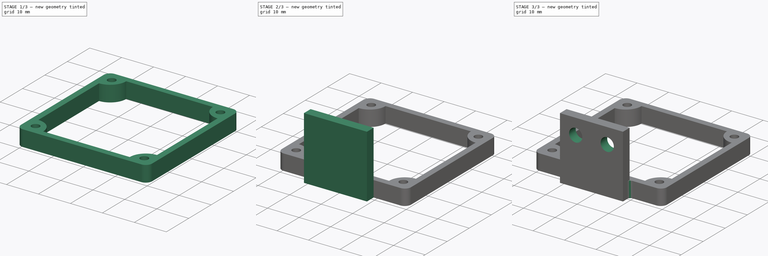
[diagram: build sequence overview — one tinted view per stage of 3, left to right]
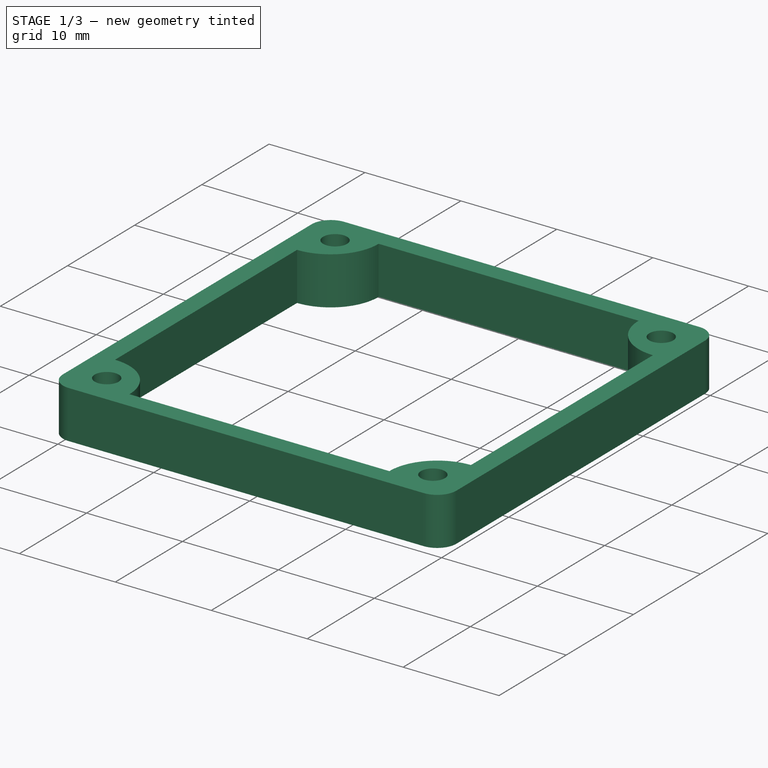
[diagram: stage 1 of 3 — iso view after this stage's code; geometry added in this stage tinted green]
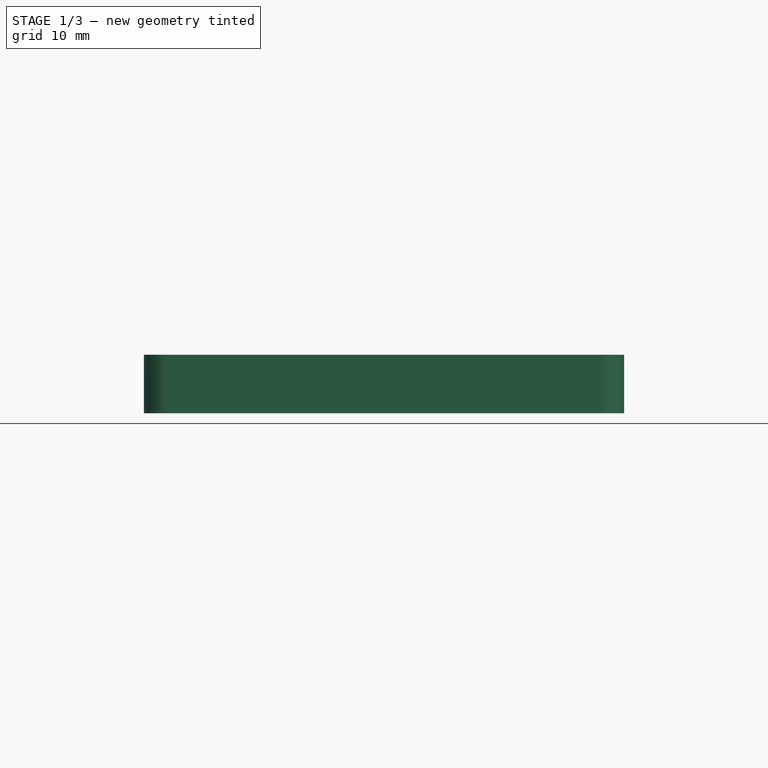
[diagram: stage 1 of 3 — front view after this stage's code; geometry added in this stage tinted green]
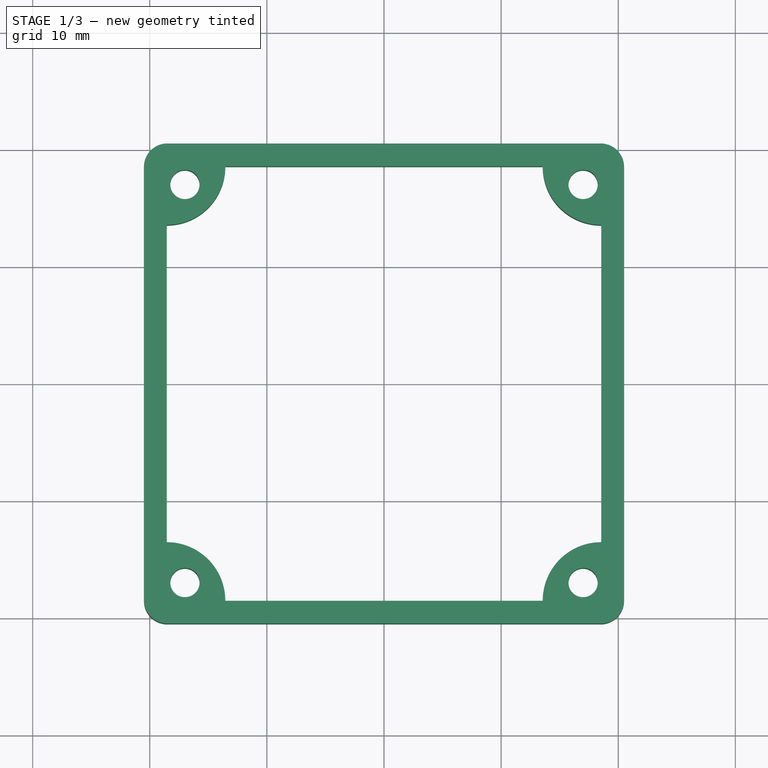
[diagram: stage 1 of 3 — top view after this stage's code; geometry added in this stage tinted green]
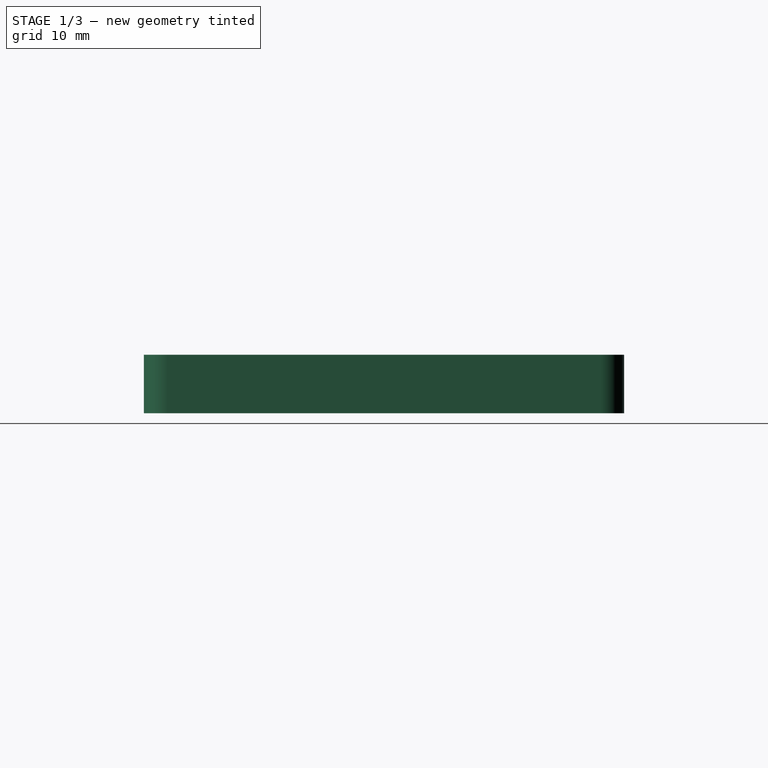
[diagram: stage 1 of 3 — right view after this stage's code; geometry added in this stage tinted green]
FCSTD DOCUMENT  (FreeCAD 2023.1102R14555 (Git shallow))
Label: Camera_Holder
License: All rights reserved
LicenseURL: https://en.wikipedia.org/wiki/All_rights_reserved
objects: Part::FeaturePython×4, Sketcher::SketchObject×3, App::FeaturePython×2, PartDesign::Pad×2, PartDesign::Fillet×2, App::Link×1, PartDesign::SubShapeBinder×1, PartDesign::Plane×1, PartDesign::Pocket×1, PartDesign::Body×1, App::Part×1
note: 27 computed .brp shape members not serialized (recipe doc carries the construction recipe); baked Part::Feature solids carry a one-line shape summary decoded from their .brp
EXTERNAL_REF file=Arducam_B0197.FCStd obj=Part

FEATURE [App::Link] Link  label="Link(Arducam_B0197)"
  AutoLinkLabel = true
  AutoPlacement = true
  LinkPlacement = pos=(0,0,0) rot=(0,1,0;3.14159rad)
  LinkedObject = -> <external Arducam_B0197.FCStd>#Part
  Placement = pos=(0,0,0) rot=(0,1,0;3.14159rad)
  SyncGroupVisibility = false
  TreeRank = 7
  _LinkVersion = 1
FEATURE [App::FeaturePython] Constraints  # WARN: FeaturePython — macro-defined, semantics opaque (R4)
  TreeRank = 3
  _LinkVersion = 1
  _Version = 1
FEATURE [PartDesign::SubShapeBinder] Binder  label="Binder(*Arducam_B0197)"
  BindCopyOnChange = 0
  BindMode = 0
  ClaimChildren = false
  Context = -> Assembly [Parts.Part.Body.Binder.]
  EdgeTolerance = 1e-06
  FillStyle = 0
  Fuse = false
  InvalidShape = false
  MakeFace = true
  MergeEdges = true
  OffsetFill = false
  OffsetIntersection = false
  OffsetJoinType = 0
  OffsetOpenResult = false
  Outline = false
  PartialLoad = false
  Relative = true
  SplitEdges = false
  Support = -> [Link]
  TightBound = false
  TreeRank = 33
  ValidateShape = false
  _Version = 8
FEATURE [PartDesign::Plane] DatumPlane
  AttachmentSupport = -> [Binder]
  InvalidShape = false
  Length = 41
  MapMode = 5
  MinimumLength = 10
  MinimumWidth = 10
  Placement = pos=(1.39876e-07,0,1.6) rot=(0,1.01411,0;0rad)
  ResizeMode = 0
  Support = -> [Binder]
  TreeRank = 34
  ValidateShape = false
  Width = 41
FEATURE [Sketcher::SketchObject] Sketch
  ArcFitTolerance = 1e-06
  AttachmentSupport = -> [DatumPlane]
  ExternalBSplineMaxDegree = 5
  ExternalBSplineTolerance = 0.0001
  ExternalGeometry = -> [Binder]
  FullyConstrained = true
  InternalTolerance = 1e-06
  InvalidShape = false
  MakeInternals = false
  MapMode = 5
  Placement = pos=(1.39876e-07,0,1.6) rot=(0,1.01411,0;0rad)
  Support = -> [DatumPlane]
  TreeRank = 35
  ValidateShape = false
  sketch-geometry (26):
    g0: Circle CenterX=-17 CenterY=17 CenterZ=0 NormalX=0 NormalY=0 NormalZ=1 AngleXU=0 Radius=1.25
    g1: Circle CenterX=17 CenterY=17 CenterZ=0 NormalX=0 NormalY=0 NormalZ=1 AngleXU=0 Radius=1.25
    g2: Circle CenterX=17 CenterY=-17 CenterZ=0 NormalX=0 NormalY=0 NormalZ=1 AngleXU=0 Radius=1.25
    g3: Circle CenterX=-17 CenterY=-17 CenterZ=0 NormalX=0 NormalY=0 NormalZ=1 AngleXU=0 Radius=1.25
    g4: LineSegment StartX=-20.5 StartY=-20.5 StartZ=0 EndX=-20.5 EndY=20.5 EndZ=0
    g5: LineSegment StartX=-20.5 StartY=20.5 StartZ=0 EndX=20.5 EndY=20.5 EndZ=0
    g6: LineSegment StartX=20.5 StartY=20.5 StartZ=0 EndX=20.5 EndY=-20.5 EndZ=0
    g7: LineSegment StartX=20.5 StartY=-20.5 StartZ=0 EndX=-20.5 EndY=-20.5 EndZ=0
    g8: GeomPoint [constr] X=0 Y=1e-16 Z=0
    g9: GeomPoint [constr] X=0 Y=1e-16 Z=0
    g10: ArcOfCircle CenterX=-18.55 CenterY=18.55 CenterZ=0 NormalX=0 NormalY=0 NormalZ=1 AngleXU=0 Radius=5 StartAngle=4.71239 EndAngle=6.28319
    g11: LineSegment [constr] StartX=-18.55 StartY=13.55 StartZ=0 EndX=-18.55 EndY=18.55 EndZ=0
    g12: LineSegment [constr] StartX=-18.55 StartY=18.55 StartZ=0 EndX=-13.55 EndY=18.55 EndZ=0
    g13: LineSegment StartX=-13.55 StartY=18.55 StartZ=0 EndX=13.55 EndY=18.55 EndZ=0
    g14: LineSegment [constr] StartX=13.55 StartY=18.55 StartZ=0 EndX=18.55 EndY=18.55 EndZ=0
    g15: LineSegment [constr] StartX=18.55 StartY=18.55 StartZ=0 EndX=18.55 EndY=13.55 EndZ=0
    g16: LineSegment StartX=18.55 StartY=13.55 StartZ=0 EndX=18.55 EndY=-13.55 EndZ=0
    g17: LineSegment [constr] StartX=18.55 StartY=-13.55 StartZ=0 EndX=18.55 EndY=-18.55 EndZ=0
    g18: LineSegment [constr] StartX=18.55 StartY=-18.55 StartZ=0 EndX=13.55 EndY=-18.55 EndZ=0
    g19: LineSegment StartX=13.55 StartY=-18.55 StartZ=0 EndX=-13.55 EndY=-18.55 EndZ=0
    g20: LineSegment [constr] StartX=-13.55 StartY=-18.55 StartZ=0 EndX=-18.55 EndY=-18.55 EndZ=0
    g21: LineSegment [constr] StartX=-18.55 StartY=-18.55 StartZ=0 EndX=-18.55 EndY=-13.55 EndZ=0
    g22: LineSegment StartX=-18.55 StartY=-13.55 StartZ=0 EndX=-18.55 EndY=13.55 EndZ=0
    g23: ArcOfCircle CenterX=18.55 CenterY=18.55 CenterZ=0 NormalX=0 NormalY=0 NormalZ=1 AngleXU=0 Radius=5 StartAngle=3.14159 EndAngle=4.71239
    g24: ArcOfCircle CenterX=18.55 CenterY=-18.55 CenterZ=0 NormalX=0 NormalY=0 NormalZ=1 AngleXU=0 Radius=5 StartAngle=1.5708 EndAngle=3.14159
    g25: ArcOfCircle CenterX=-18.55 CenterY=-18.55 CenterZ=0 NormalX=0 NormalY=0 NormalZ=1 AngleXU=0 Radius=5 StartAngle=0 EndAngle=1.5708
  constraints (64):
    c: Coincident(g0,g-3)
    c: Coincident(g1,g-4)
    c: Coincident(g2,g-5)
    c: Coincident(g3,g-6)
    c: Equal(g3,g0)
    c: Equal(g0,g1)
    c: Equal(g1,g2)
    c: Diameter(g0) = 2.5
    c: Coincident(g4,g5)
    c: Coincident(g5,g6)
    c: Coincident(g6,g7)
    c: Coincident(g7,g4)
    c: Horizontal(g5)
    c: Horizontal(g7)
    c: Vertical(g4)
    c: Vertical(g6)
    c: Symmetric(g5,g4,g8)
    c: Coincident(g8,g-1)
    c: Distance(g5) = 41
    c: Equal(g5,g4)
    c: Coincident(g11,g12)
    c: Coincident(g14,g15)
    c: Coincident(g17,g18)
    c: Coincident(g20,g21)
    c: Symmetric(g14,g21,g9)
    c: Coincident(g9,g8)
    c: Coincident(g10,g11)
    c: Radius(g10) = 5
    c: Coincident(g22,g11)
    c: Vertical(g11)
    c: Coincident(g22,g10)
    c: Coincident(g12,g13)
    c: Horizontal(g12)
    c: Coincident(g12,g10)
    c: DistanceY(g10,g-7) = 0.5
    c: DistanceX(g-7,g10) = 0.5
    c: Coincident(g13,g14)
    c: Horizontal(g13)
    c: Horizontal(g14)
    c: Coincident(g15,g16)
    c: Vertical(g15)
    c: Coincident(g16,g17)
    c: Vertical(g16)
    c: Vertical(g17)
    c: Coincident(g18,g19)
    c: Horizontal(g18)
    c: Coincident(g19,g20)
    c: Horizontal(g19)
    c: Horizontal(g20)
    c: Coincident(g21,g22)
    c: Vertical(g21)
    c: Vertical(g22)
    c: Coincident(g23,g13)
    c: Coincident(g23,g16)
    c: Coincident(g23,g14)
    c: Coincident(g24,g19)
    c: Coincident(g24,g16)
    c: Coincident(g24,g17)
    c: Coincident(g25,g22)
    c: Coincident(g25,g19)
    c: Coincident(g25,g20)
    c: Equal(g24,g25)
    c: Equal(g25,g23)
    c: Equal(g23,g10)
FEATURE [PartDesign::Pad] Pad
  AddSubType = 0
  AlongSketchNormal = false
  AutoTaperInnerAngle = true
  CheckUpToFaceLimits = true
  ClaimChildren = false
  Direction = (8.74228e-08,0,1)
  Fit = 0
  FitJoin = 0
  InnerFit = 0
  InnerFitJoin = 0
  InvalidShape = false
  Length = 5
  Length2 = 10
  Linearize = true
  NewSolid = false
  Profile = -> Sketch
  ReferenceAxis = -> Sketch [N_Axis]
  Refine = true
  Suppress = false
  TaperInnerAngle = 0
  TaperInnerAngleRev = 0
  TreeRank = 36
  Type = 0
  ValidateShape = true
  _ProfileBasedVersion = 1
FEATURE [PartDesign::Fillet] Fillet
  AddSubType = 0
  Base = -> Pad [Edge1,Edge8,Edge5,Edge2]
  BaseFeature = -> Pad
  InvalidShape = false
  NewSolid = false
  Radius = 2
  Refine = true
  SupportTransform = false
  Suppress = false
  TreeRank = 37
  UseAllEdges = false
  ValidateShape = true
FEATURE [PartDesign::Body] Body
  AutoGroupSolids = false
  ClaimAllChildren = false
  ExportMode = 0
  Group = -> [Binder,DatumPlane,Sketch,Pad,Fillet,Sketch001,Pad001,Sketch002,Pocket,Fillet001]
  InvalidShape = false
  Origin = -> Origin001
  Tip = -> Fillet001
  TreeRank = 32
  ValidateShape = false
  _ExportChildren = -> [Binder,DatumPlane,Pad,Fillet,Pad001,Pocket,Fillet001]
  _GroupVersion = 1
FEATURE [App::Part] Part
  ClaimAllChildren = false
  ExportMode = 1
  Group = -> [Body]
  Origin = -> Origin
  TreeRank = 20
  _ExportChildren = -> [Body]
  _GroupVersion = 1
FEATURE [Part::FeaturePython] Parts  # WARN: FeaturePython — macro-defined, semantics opaque (R4)
  Group = -> [Part,Link]
  GroupMode = 0
  InvalidShape = false
  TreeRank = 15
  ValidateShape = false
  _LinkVersion = 1
FEATURE [Part::FeaturePython] Assembly  label="Camera_Holder_Assembly"  # WARN: FeaturePython — macro-defined, semantics opaque (R4)
  AutoRelax = true
  BuildShape = 0
  Freeze = false
  Group = -> [Constraints,Elements,Parts]
  InvalidShape = false
  TreeRank = 6
  ValidateShape = false
  Verbose = false
  _LinkVersion = 1
  _SolverType = 1
  _Version = 1
FEATURE [App::FeaturePython] Elements  # WARN: FeaturePython — macro-defined, semantics opaque (R4)
  Group = -> [Element,Element001]
  TreeRank = 4
  _LinkVersion = 1
FEATURE [Part::FeaturePython] Element  label="MountingHole01"  # link proxy (typed FeaturePython)
  Detach = false
  InvalidShape = false
  LinkTransform = true
  LinkedObject = -> Part [Body.Fillet001.Edge43]
  TreeRank = 43
  ValidateShape = false
  _LinkVersion = 1
  _Parent = -> Elements
FEATURE [Part::FeaturePython] Element001  label="MountingHole02"  # link proxy (typed FeaturePython)
  Detach = false
  InvalidShape = false
  LinkTransform = true
  LinkedObject = -> Part [Body.Fillet001.Edge42]
  TreeRank = 44
  ValidateShape = false
  _LinkVersion = 1
  _Parent = -> Elements

RESOLVED EXTERNAL PARTS (link-assembly join: the EXTERNAL_REF files above that resolve inside this repo's crawl, each included once):
---- part Arducam_B0197.FCStd = doc fcstd_32bad3ef791b ----
FCSTD DOCUMENT  (FreeCAD 2023.1102R14555 (Git shallow))
Label: Arducam_B0197
License: All rights reserved
LicenseURL: http://en.wikipedia.org/wiki/All_rights_reserved
objects: Sketcher::SketchObject×4, PartDesign::Pad×4, PartDesign::Plane×2, PartDesign::Body×1, App::Part×1
note: 23 computed .brp shape members not serialized (recipe doc carries the construction recipe); baked Part::Feature solids carry a one-line shape summary decoded from their .brp

FEATURE [Sketcher::SketchObject] Sketch
  ArcFitTolerance = 0
  AttachmentSupport = -> [XY_Plane]
  ExternalBSplineMaxDegree = 0
  ExternalBSplineTolerance = 0
  FullyConstrained = true
  InternalTolerance = 1e-06
  InvalidShape = false
  MakeInternals = false
  MapMode = 5
  Support = -> [XY_Plane]
  TreeRank = 0
  ValidateShape = false
  sketch-geometry (24):
    g0: LineSegment StartX=-19.05 StartY=19.05 StartZ=0 EndX=19.05 EndY=19.05 EndZ=0
    g1: LineSegment StartX=19.05 StartY=19.05 StartZ=0 EndX=19.05 EndY=-19.05 EndZ=0
    g2: LineSegment StartX=19.05 StartY=-19.05 StartZ=0 EndX=-19.05 EndY=-19.05 EndZ=0
    g3: LineSegment StartX=-19.05 StartY=-19.05 StartZ=0 EndX=-19.05 EndY=19.05 EndZ=0
    g4: LineSegment [constr] StartX=-14 StartY=14 StartZ=0 EndX=14 EndY=14 EndZ=0
    g5: LineSegment [constr] StartX=14 StartY=14 StartZ=0 EndX=14 EndY=-14 EndZ=0
    g6: LineSegment [constr] StartX=14 StartY=-14 StartZ=0 EndX=-14 EndY=-14 EndZ=0
    g7: LineSegment [constr] StartX=-14 StartY=-14 StartZ=0 EndX=-14 EndY=14 EndZ=0
    g8: Circle CenterX=-14 CenterY=14 CenterZ=0 NormalX=0 NormalY=0 NormalZ=1 AngleXU=0 Radius=1.125
    g9: Circle CenterX=14 CenterY=14 CenterZ=0 NormalX=0 NormalY=0 NormalZ=1 AngleXU=0 Radius=1.125
    g10: Circle CenterX=14 CenterY=-14 CenterZ=0 NormalX=0 NormalY=0 NormalZ=1 AngleXU=0 Radius=1.125
    g11: Circle CenterX=-14 CenterY=-14 CenterZ=0 NormalX=0 NormalY=0 NormalZ=1 AngleXU=0 Radius=1.125
    g12: LineSegment [constr] StartX=-17 StartY=17 StartZ=0 EndX=17 EndY=17 EndZ=0
    g13: LineSegment [constr] StartX=17 StartY=17 StartZ=0 EndX=17 EndY=-17 EndZ=0
    g14: LineSegment [constr] StartX=17 StartY=-17 StartZ=0 EndX=-17 EndY=-17 EndZ=0
    g15: LineSegment [constr] StartX=-17 StartY=-17 StartZ=0 EndX=-17 EndY=17 EndZ=0
    g16: Circle CenterX=-17 CenterY=17 CenterZ=0 NormalX=0 NormalY=0 NormalZ=1 AngleXU=0 Radius=1.125
    g17: Circle CenterX=17 CenterY=17 CenterZ=0 NormalX=0 NormalY=0 NormalZ=1 AngleXU=0 Radius=1.125
    g18: Circle CenterX=17 CenterY=-17 CenterZ=0 NormalX=0 NormalY=0 NormalZ=1 AngleXU=0 Radius=1.125
    g19: Circle CenterX=-17 CenterY=-17 CenterZ=0 NormalX=0 NormalY=0 NormalZ=1 AngleXU=0 Radius=1.125
    g20: LineSegment [constr] StartX=-16 StartY=16 StartZ=0 EndX=16 EndY=16 EndZ=0
    g21: LineSegment [constr] StartX=16 StartY=16 StartZ=0 EndX=16 EndY=-16 EndZ=0
    g22: LineSegment [constr] StartX=16 StartY=-16 StartZ=0 EndX=-16 EndY=-16 EndZ=0
    g23: LineSegment [constr] StartX=-16 StartY=-16 StartZ=0 EndX=-16 EndY=16 EndZ=0
  constraints (58):
    c: Coincident(g0,g1)
    c: Coincident(g1,g2)
    c: Coincident(g2,g3)
    c: Coincident(g3,g0)
    c: Horizontal(g2)
    c: Vertical(g1)
    c: DistanceX(g0,g0) = 38.1
    c: DistanceY(g3,g3) = 38.1
    c: Symmetric(g0,g0,g-2)
    c: Symmetric(g2,g0,g-1)
    c: Coincident(g4,g5)
    c: Coincident(g5,g6)
    c: Coincident(g6,g7)
    c: Coincident(g7,g4)
    c: Horizontal(g4)
    c: Vertical(g7)
    c: DistanceX(g4,g4) = 28
    c: Coincident(g8,g4)
    c: Diameter(g8) = 2.25
    c: DistanceY(g5,g5) = 28
    c: Symmetric(g4,g5,g-1)
    c: Symmetric(g5,g6,g-2)
    c: Coincident(g9,g4)
    c: Coincident(g10,g5)
    c: Coincident(g11,g6)
    c: Equal(g9,g10)
    c: Equal(g10,g11)
    c: Equal(g11,g8)
    c: Coincident(g12,g13)
    c: Coincident(g13,g14)
    c: Coincident(g14,g15)
    c: Coincident(g15,g12)
    c: Horizontal(g12)
    c: Horizontal(g14)
    c: Vertical(g13)
    c: Vertical(g15)
    c: DistanceX(g12,g12) = 34
    c: Equal(g13,g12)
    c: Symmetric(g14,g12,g-1)
    c: Coincident(g16,g12)
    c: Coincident(g17,g12)
    c: Coincident(g18,g13)
    c: Coincident(g19,g14)
    c: Equal(g16,g19)
    c: Equal(g19,g18)
    c: Equal(g18,g17)
    c: Diameter(g18) = 2.25
    c: Coincident(g20,g21)
    c: Coincident(g21,g22)
    c: Coincident(g22,g23)
    c: Coincident(g23,g20)
    c: Horizontal(g20)
    c: Horizontal(g22)
    c: Vertical(g21)
    c: Vertical(g23)
    c: Symmetric(g20,g21,g-1)
    c: Equal(g21,g20)
    c: DistanceY(g21,g21) = 32
FEATURE [PartDesign::Pad] Pad
  AddSubType = 0
  AutoTaperInnerAngle = true
  CheckUpToFaceLimits = true
  ClaimChildren = false
  Direction = (0,0,1)
  Fit = 0
  FitJoin = 0
  InnerFit = 0
  InnerFitJoin = 0
  InvalidShape = false
  Length = 1.6
  Length2 = 100
  NewSolid = false
  Profile = -> Sketch
  Reversed = true
  Suppress = false
  TaperInnerAngle = 0
  TaperInnerAngleRev = 0
  TreeRank = 0
  Type = 0
  ValidateShape = true
  _ProfileBasedVersion = 0
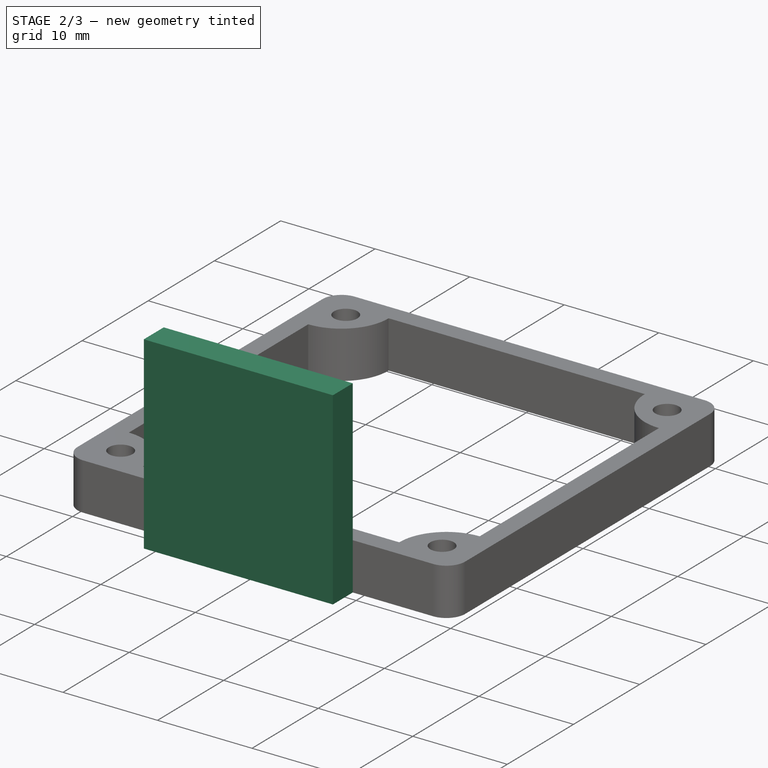
[diagram: stage 2 of 3 — iso view after this stage's code; geometry added in this stage tinted green]
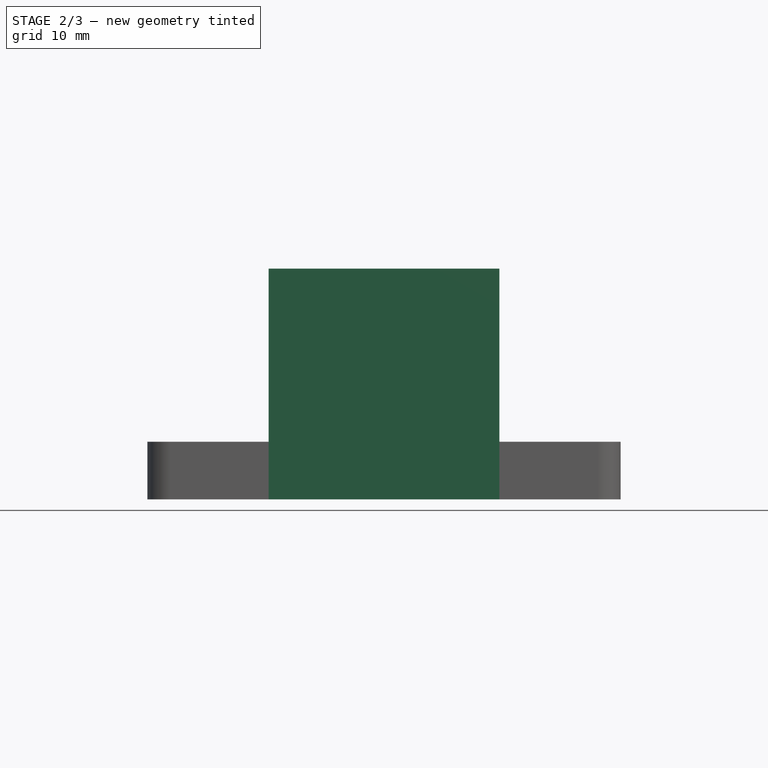
[diagram: stage 2 of 3 — front view after this stage's code; geometry added in this stage tinted green]
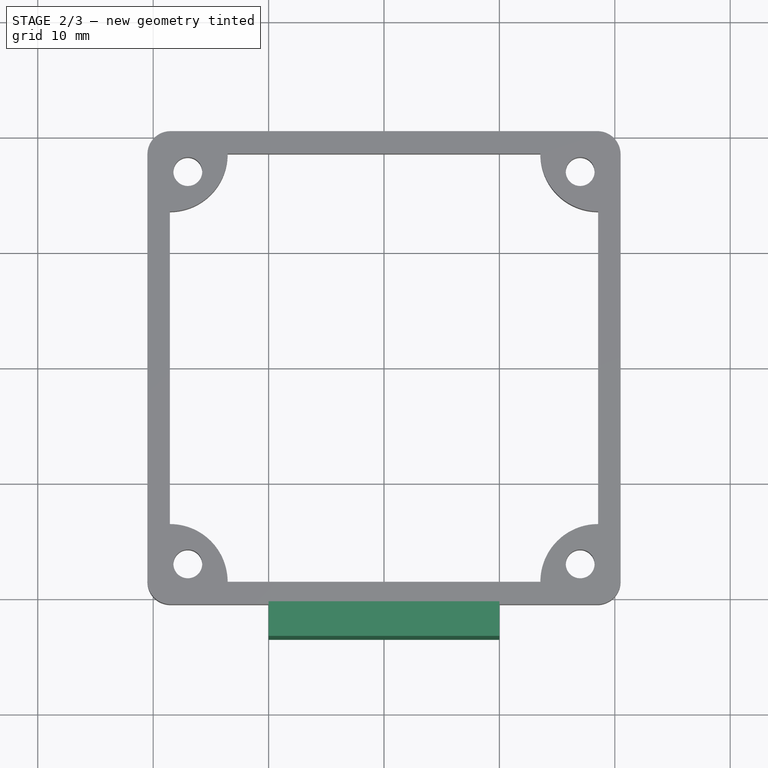
[diagram: stage 2 of 3 — top view after this stage's code; geometry added in this stage tinted green]
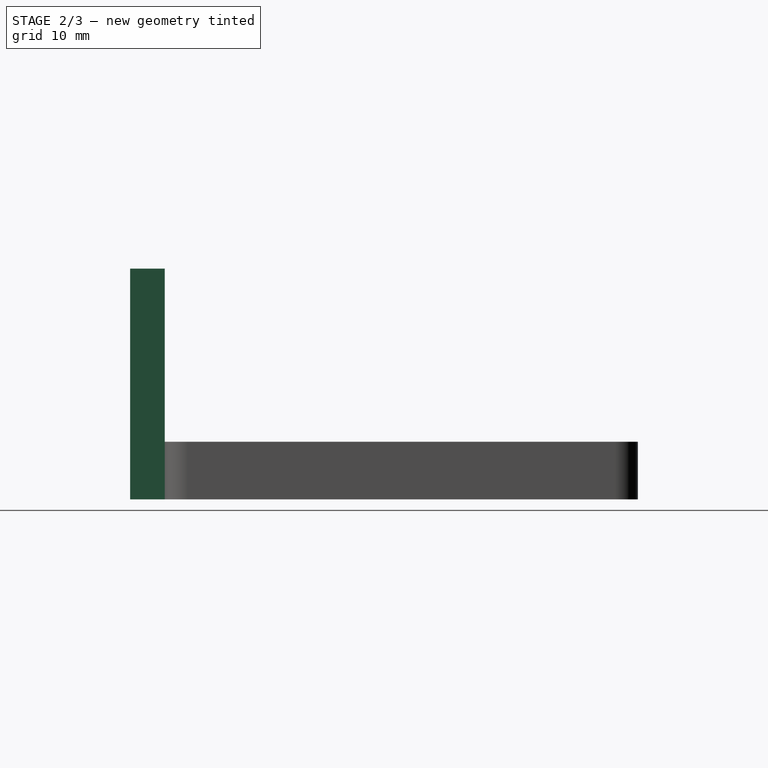
[diagram: stage 2 of 3 — right view after this stage's code; geometry added in this stage tinted green]
FEATURE [Sketcher::SketchObject] Sketch001
  ArcFitTolerance = 0
  AttachmentSupport = -> [XY_Plane]
  ExternalBSplineMaxDegree = 0
  ExternalBSplineTolerance = 0
  FullyConstrained = true
  InternalTolerance = 1e-06
  InvalidShape = false
  MakeInternals = false
  MapMode = 5
  Support = -> [XY_Plane]
  TreeRank = 0
  ValidateShape = false
  sketch-geometry (12):
    g0: LineSegment StartX=-8 StartY=2.25 StartZ=0 EndX=-8 EndY=8 EndZ=0
    g1: LineSegment StartX=-8 StartY=8 StartZ=0 EndX=8 EndY=8 EndZ=0
    g2: LineSegment StartX=8 StartY=8 StartZ=0 EndX=8 EndY=2.25 EndZ=0
    g3: LineSegment StartX=-8 StartY=-2.25 StartZ=0 EndX=-8 EndY=-8 EndZ=0
    g4: LineSegment StartX=-8 StartY=-8 StartZ=0 EndX=8 EndY=-8 EndZ=0
    g5: LineSegment StartX=8 StartY=-8 StartZ=0 EndX=8 EndY=-2.25 EndZ=0
    g6: ArcOfCircle CenterX=-10 CenterY=0 CenterZ=0 NormalX=0 NormalY=0 NormalZ=1 AngleXU=0 Radius=2.25 StartAngle=1.5708 EndAngle=4.71239
    g7: ArcOfCircle CenterX=10 CenterY=0 CenterZ=0 NormalX=0 NormalY=0 NormalZ=1 AngleXU=0 Radius=2.25 StartAngle=4.71239 EndAngle=7.85398
    g8: LineSegment StartX=-10 StartY=2.25 StartZ=0 EndX=-8 EndY=2.25 EndZ=0
    g9: LineSegment StartX=-9.99999 StartY=-2.25 StartZ=0 EndX=-8 EndY=-2.25 EndZ=0
    g10: LineSegment StartX=8 StartY=2.25 StartZ=0 EndX=10 EndY=2.25 EndZ=0
    g11: LineSegment StartX=8 StartY=-2.25 StartZ=0 EndX=10 EndY=-2.25 EndZ=0
  constraints (34):
    c: Vertical(g0)
    c: Coincident(g0,g1)
    c: Coincident(g1,g2)
    c: Vertical(g2)
    c: Vertical(g3)
    c: Coincident(g3,g4)
    c: Horizontal(g4)
    c: Coincident(g4,g5)
    c: Vertical(g5)
    c: PointOnObject(g6,g-1)
    c: Tangent(g6,g8) = 1.5708
    c: Coincident(g2,g10)
    c: Coincident(g10,g7)
    c: Coincident(g5,g11)
    c: Coincident(g11,g7)
    c: Coincident(g8,g0)
    c: Horizontal(g8)
    c: Horizontal(g9)
    c: Coincident(g9,g3)
    c: Coincident(g9,g6)
    c: Horizontal(g10)
    c: Horizontal(g11)
    c: Tangent(g7,g10)
    c: Tangent(g7,g11)
    c: Tangent(g6,g9)
    c: DistanceX(g1,g1) = 16
    c: DistanceY(g3,g0) = 16
    c: PointOnObject(g0,g3)
    c: Symmetric(g0,g1,g-2)
    c: Symmetric(g1,g4,g-1)
    c: DistanceY(g5,g2) = 4.5
    c: DistanceY(g3,g0) = 4.5
    c: DistanceX(g6,g7) = 20
    c: Symmetric(g7,g6,g-2)
FEATURE [PartDesign::Pad] Pad001
  AddSubType = 0
  AlongSketchNormal = false
  AutoTaperInnerAngle = true
  BaseFeature = -> Pad
  CheckUpToFaceLimits = true
  ClaimChildren = false
  Direction = (0,0,1)
  Fit = 0
  FitJoin = 0
  InnerFit = 0
  InnerFitJoin = 0
  InvalidShape = false
  Length = 6.1
  Length2 = 100
  NewSolid = false
  Profile = -> Sketch001
  Suppress = false
  TaperInnerAngle = 0
  TaperInnerAngleRev = 0
  TreeRank = 0
  Type = 0
  ValidateShape = true
  _ProfileBasedVersion = 0
FEATURE [PartDesign::Plane] DatumPlane
  AttachmentSupport = -> [Pad001]
  InvalidShape = false
  Length = 10
  MapMode = 5
  MinimumLength = 10
  MinimumWidth = 10
  Placement = pos=(0,0,6.1) rot=(0,0,1;0rad)
  ResizeMode = 0
  Support = -> [Pad001]
  TreeRank = 0
  ValidateShape = false
  Width = 10
FEATURE [Sketcher::SketchObject] Sketch002
  ArcFitTolerance = 0
  AttachmentSupport = -> [DatumPlane]
  ExternalBSplineMaxDegree = 0
  ExternalBSplineTolerance = 0
  FullyConstrained = true
  InternalTolerance = 1e-06
  InvalidShape = false
  MakeInternals = false
  MapMode = 5
  Placement = pos=(0,0,6.1) rot=(0,0,1;0rad)
  Support = -> [DatumPlane]
  TreeRank = 0
  ValidateShape = false
  sketch-geometry (1):
    g0: Circle CenterX=0 CenterY=0 CenterZ=0 NormalX=0 NormalY=0 NormalZ=1 AngleXU=0 Radius=7.5
  constraints (2):
    c: Coincident(g0,g-1)
    c: Diameter(g0) = 15
FEATURE [PartDesign::Pad] Pad002
  AddSubType = 0
  AlongSketchNormal = false
  AutoTaperInnerAngle = true
  BaseFeature = -> Pad001
  CheckUpToFaceLimits = true
  ClaimChildren = false
  Direction = (0,0,1)
  Fit = 0
  FitJoin = 0
  InnerFit = 0
  InnerFitJoin = 0
  InvalidShape = false
  Length = 1
  Length2 = 100
  NewSolid = false
  Profile = -> Sketch002
  Suppress = false
  TaperInnerAngle = 0
  TaperInnerAngleRev = 0
  TreeRank = 0
  Type = 0
  ValidateShape = true
  _ProfileBasedVersion = 0
FEATURE [PartDesign::Plane] DatumPlane001
  AttachmentSupport = -> [Pad002]
  InvalidShape = false
  Length = 38.1
  MapMode = 5
  MinimumLength = 10
  MinimumWidth = 10
  Placement = pos=(0,0,-1.6) rot=(1,0,0;3.14159rad)
  ResizeMode = 0
  Support = -> [Pad002]
  TreeRank = 0
  ValidateShape = false
  Width = 38.1
FEATURE [Sketcher::SketchObject] Sketch003
  ArcFitTolerance = 0
  AttachmentSupport = -> [DatumPlane001]
  ExternalBSplineMaxDegree = 0
  ExternalBSplineTolerance = 0
  FullyConstrained = true
  InternalTolerance = 1e-06
  InvalidShape = false
  MakeInternals = false
  MapMode = 5
  Placement = pos=(0,0,-1.6) rot=(1,0,0;3.14159rad)
  Support = -> [DatumPlane001]
  TreeRank = 0
  ValidateShape = false
  sketch-geometry (4):
    g0: LineSegment StartX=0 StartY=15.5 StartZ=0 EndX=10 EndY=15.5 EndZ=0
    g1: LineSegment StartX=10 StartY=15.5 StartZ=0 EndX=10 EndY=11 EndZ=0
    g2: LineSegment StartX=10 StartY=11 StartZ=0 EndX=0 EndY=11 EndZ=0
    g3: LineSegment StartX=0 StartY=11 StartZ=0 EndX=0 EndY=15.5 EndZ=0
  constraints (12):
    c: Coincident(g0,g1)
    c: Coincident(g1,g2)
    c: Coincident(g2,g3)
    c: Coincident(g3,g0)
    c: Horizontal(g0)
    c: Horizontal(g2)
    c: Vertical(g1)
    c: Vertical(g3)
    c: DistanceX(g0,g0) = 10
    c: DistanceY(g1,g1) = 4.5
    c: PointOnObject(g-1,g3)
    c: DistanceY(g-1,g2) = 11
FEATURE [PartDesign::Pad] Pad003
  AddSubType = 0
  AutoTaperInnerAngle = true
  BaseFeature = -> Pad002
  CheckUpToFaceLimits = true
  ClaimChildren = false
  Direction = (0,0,-1)
  Fit = 0
  FitJoin = 0
  InnerFit = 0
  InnerFitJoin = 0
  InvalidShape = false
  Length = 6.25
  Length2 = 100
  NewSolid = false
  Profile = -> Sketch003
  Suppress = false
  TaperInnerAngle = 0
  TaperInnerAngleRev = 0
  TreeRank = 0
  Type = 0
  ValidateShape = true
  _ProfileBasedVersion = 0
FEATURE [PartDesign::Body] Body
  AutoGroupSolids = false
  ClaimAllChildren = false
  ExportMode = 0
  Group = -> [Sketch,Pad,Sketch001,Pad001,DatumPlane,Sketch002,Pad002,DatumPlane001,Sketch003,Pad003]
  InvalidShape = false
  Origin = -> Origin
  Tip = -> Pad003
  TreeRank = 0
  ValidateShape = false
  _ExportChildren = -> [Pad,Pad001,DatumPlane,Pad002,DatumPlane001,Pad003]
  _GroupVersion = 1
FEATURE [App::Part] Part  label="Arducam_B0197"
  ClaimAllChildren = false
  ExportMode = 1
  Group = -> [Body]
  Origin = -> Origin001
  TreeRank = 5
  _ExportChildren = -> [Body]
  _GroupVersion = 1
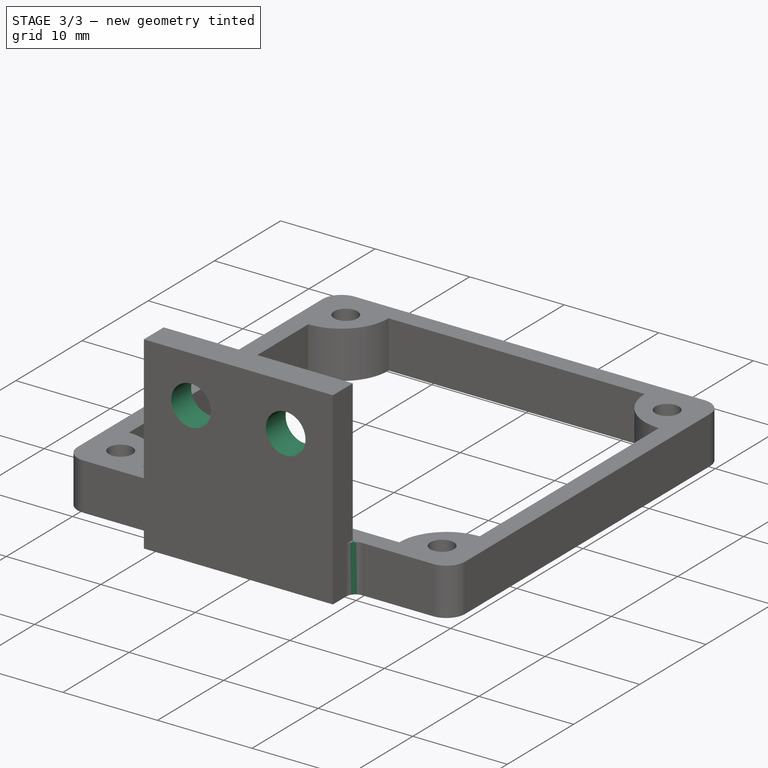
[diagram: stage 3 of 3 — iso view after this stage's code; geometry added in this stage tinted green]
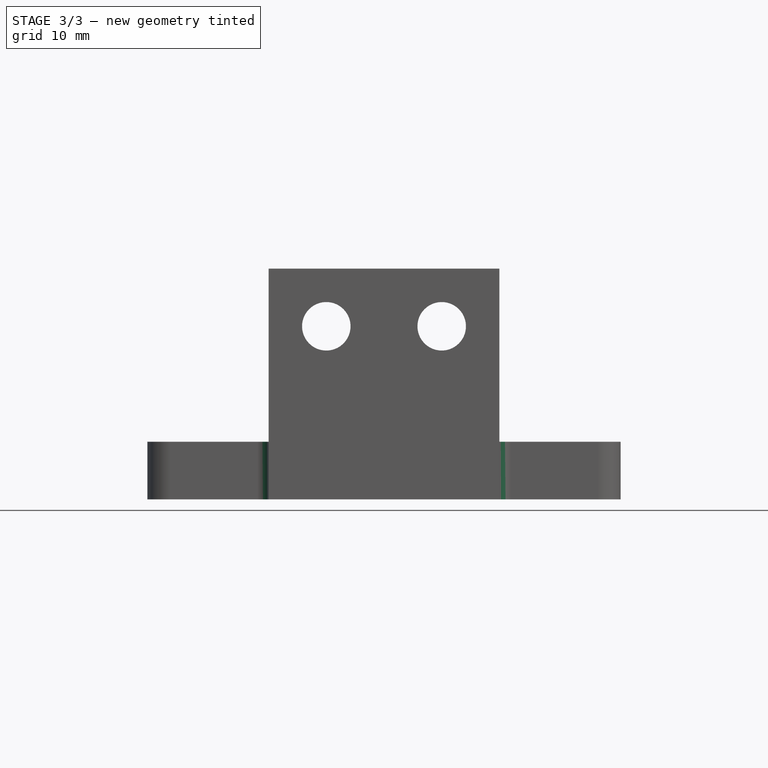
[diagram: stage 3 of 3 — front view after this stage's code; geometry added in this stage tinted green]
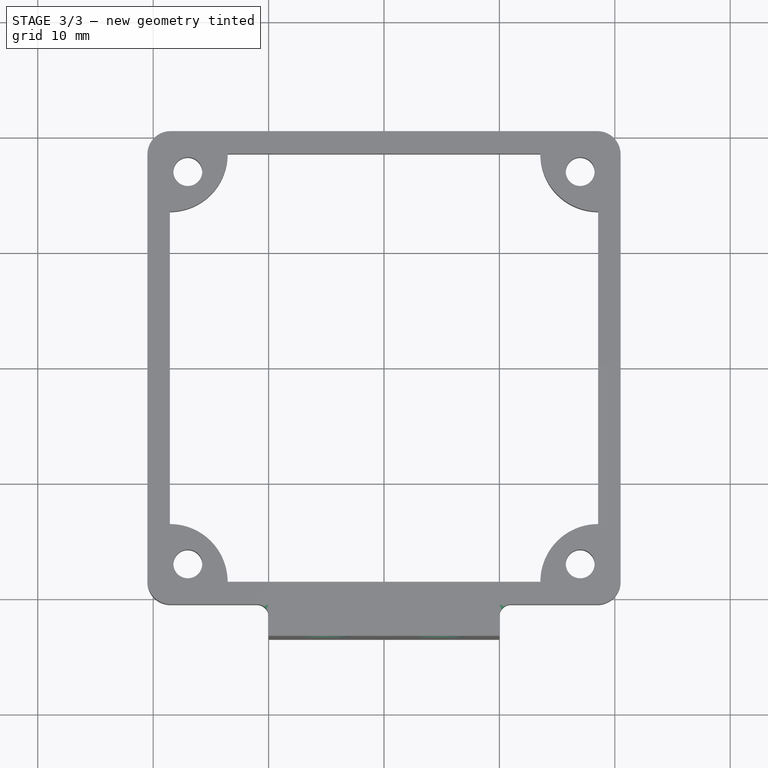
[diagram: stage 3 of 3 — top view after this stage's code; geometry added in this stage tinted green]
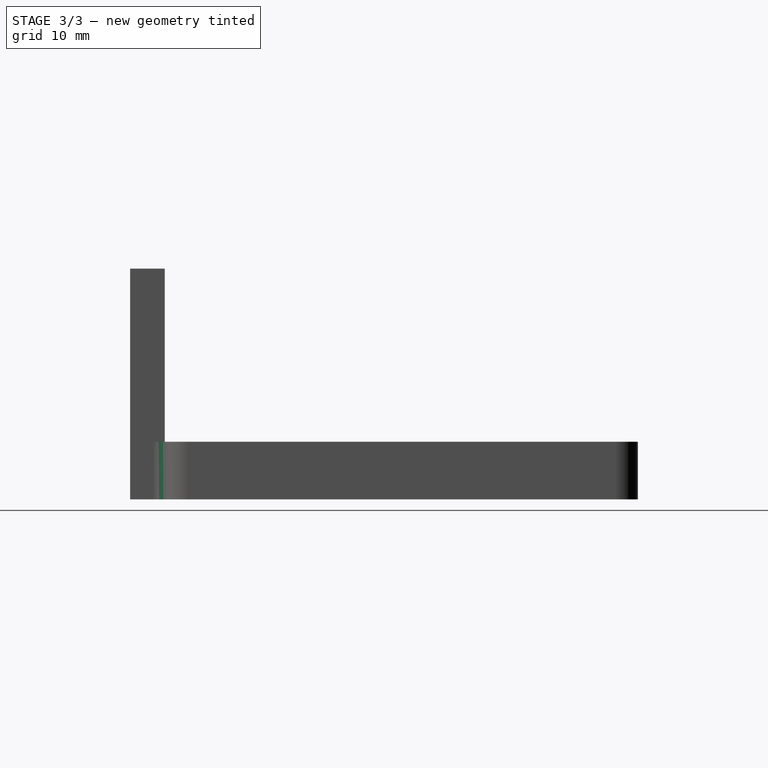
[diagram: stage 3 of 3 — right view after this stage's code; geometry added in this stage tinted green]
FEATURE [Sketcher::SketchObject] Sketch001
  ArcFitTolerance = 1e-06
  AttachmentSupport = -> [DatumPlane]
  ExternalBSplineMaxDegree = 5
  ExternalBSplineTolerance = 0.0001
  ExternalGeometry = -> [Fillet]
  FullyConstrained = true
  InternalTolerance = 1e-06
  InvalidShape = false
  MakeInternals = false
  MapMode = 5
  Placement = pos=(1.39876e-07,0,1.6) rot=(0,1.01411,0;0rad)
  Support = -> [DatumPlane]
  TreeRank = 38
  ValidateShape = false
  sketch-geometry (4):
    g0: LineSegment StartX=-10 StartY=-20.5 StartZ=0 EndX=10 EndY=-20.5 EndZ=0
    g1: LineSegment StartX=10 StartY=-20.5 StartZ=0 EndX=10 EndY=-23.5 EndZ=0
    g2: LineSegment StartX=10 StartY=-23.5 StartZ=0 EndX=-10 EndY=-23.5 EndZ=0
    g3: LineSegment StartX=-10 StartY=-23.5 StartZ=0 EndX=-10 EndY=-20.5 EndZ=0
  constraints (11):
    c: Coincident(g0,g1)
    c: Coincident(g1,g2)
    c: Coincident(g2,g3)
    c: Coincident(g3,g0)
    c: Horizontal(g2)
    c: Vertical(g1)
    c: Vertical(g3)
    c: PointOnObject(g0,g-3)
    c: Symmetric(g0,g0,g-2)
    c: Distance(g2) = 20
    c: Distance(g3) = 3
FEATURE [PartDesign::Pad] Pad001
  AddSubType = 0
  AlongSketchNormal = false
  AutoTaperInnerAngle = true
  BaseFeature = -> Fillet
  CheckUpToFaceLimits = true
  ClaimChildren = false
  Direction = (8.74228e-08,0,1)
  Fit = 0
  FitJoin = 0
  InnerFit = 0
  InnerFitJoin = 0
  InvalidShape = false
  Length = 20
  Length2 = 10
  Linearize = true
  NewSolid = false
  Profile = -> Sketch001
  ReferenceAxis = -> Sketch001 [N_Axis]
  Refine = true
  Suppress = false
  TaperInnerAngle = 0
  TaperInnerAngleRev = 0
  TreeRank = 39
  Type = 0
  ValidateShape = true
  _ProfileBasedVersion = 1
FEATURE [Sketcher::SketchObject] Sketch002
  ArcFitTolerance = 1e-06
  AttachmentSupport = -> [Pad001]
  ExternalBSplineMaxDegree = 5
  ExternalBSplineTolerance = 0.0001
  ExternalGeometry = -> [Pad001]
  FullyConstrained = true
  InternalTolerance = 1e-06
  InvalidShape = false
  MakeInternals = false
  MapMode = 5
  Placement = pos=(0,-20.5,0) rot=(0,0.707107,0.707107;3.14159rad)
  Support = -> [Pad001]
  TreeRank = 40
  ValidateShape = false
  sketch-geometry (2):
    g0: Circle CenterX=5 CenterY=16.6 CenterZ=0 NormalX=0 NormalY=0 NormalZ=1 AngleXU=0 Radius=2.1
    g1: Circle CenterX=-5 CenterY=16.6 CenterZ=0 NormalX=0 NormalY=0 NormalZ=1 AngleXU=0 Radius=2.1
  constraints (5):
    c: Equal(g0,g1)
    c: Symmetric(g0,g1,g-2)
    c: Diameter(g0) = 4.2
    c: Distance(g0,g1) = 10
    c: Distance(g0,g-3) = 5
FEATURE [PartDesign::Pocket] Pocket
  AddSubType = 1
  AlongSketchNormal = false
  AutoTaperInnerAngle = true
  BaseFeature = -> Pad001
  CheckUpToFaceLimits = true
  ClaimChildren = false
  Direction = (0,-1,2e-16)
  Fit = 0
  FitJoin = 0
  InnerFit = 0
  InnerFitJoin = 0
  InvalidShape = false
  Length = 9
  Length2 = 10
  Linearize = true
  NewSolid = false
  Profile = -> Sketch002
  ReferenceAxis = -> Sketch002 [N_Axis]
  Refine = true
  Suppress = false
  TaperInnerAngle = 0
  TaperInnerAngleRev = 0
  TreeRank = 41
  Type = 0
  ValidateShape = true
  _ProfileBasedVersion = 1
  _Version = 1
FEATURE [PartDesign::Fillet] Fillet001
  AddSubType = 0
  Base = -> Pocket [Edge55,Edge63]
  BaseFeature = -> Pocket
  InvalidShape = false
  NewSolid = false
  Radius = 1
  Refine = true
  SupportTransform = false
  Suppress = false
  TreeRank = 42
  UseAllEdges = false
  ValidateShape = true
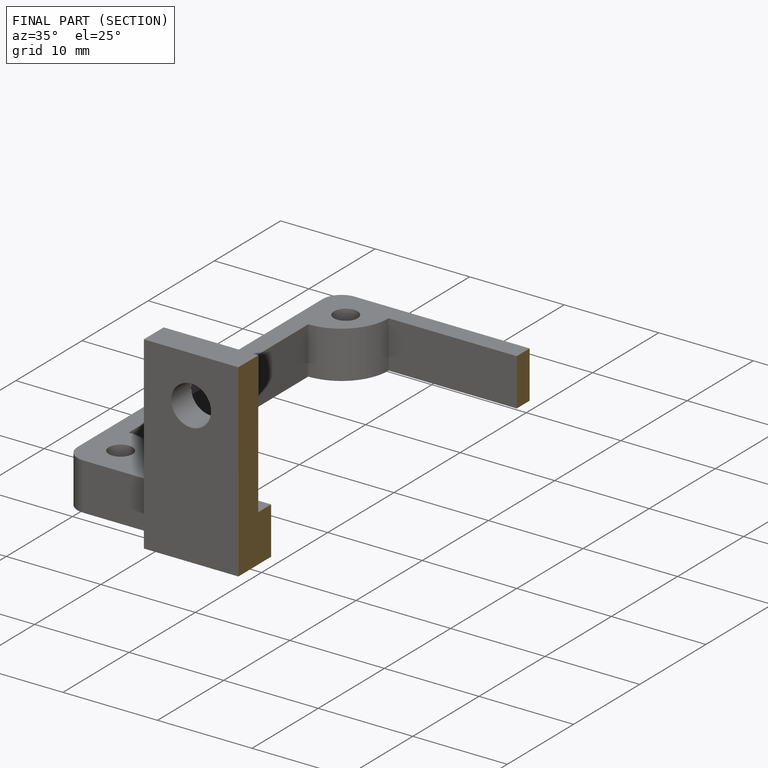
[diagram: finished part — half-section view (interior)]
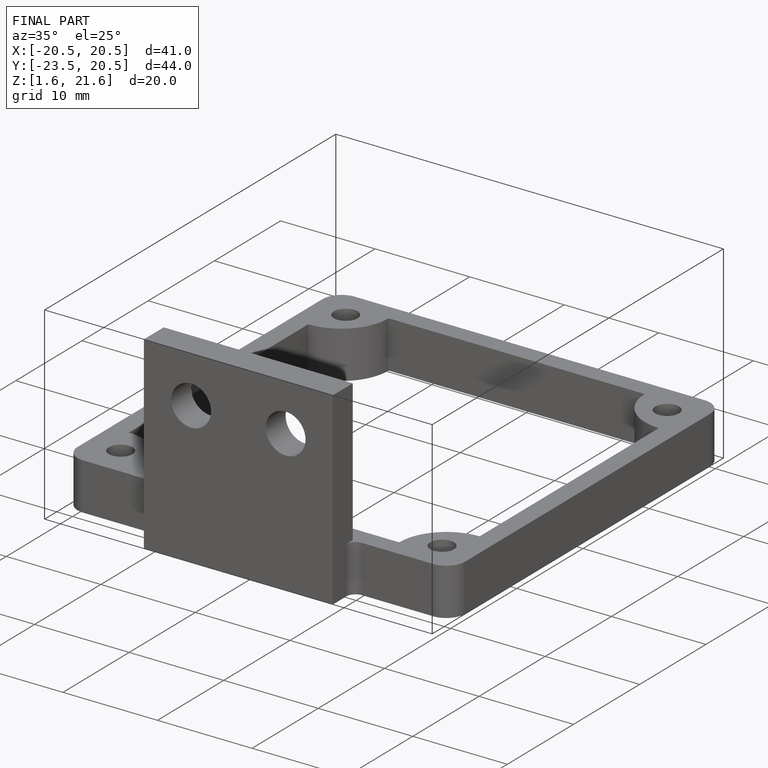
[diagram: finished part — iso view with bounding-box wireframe]
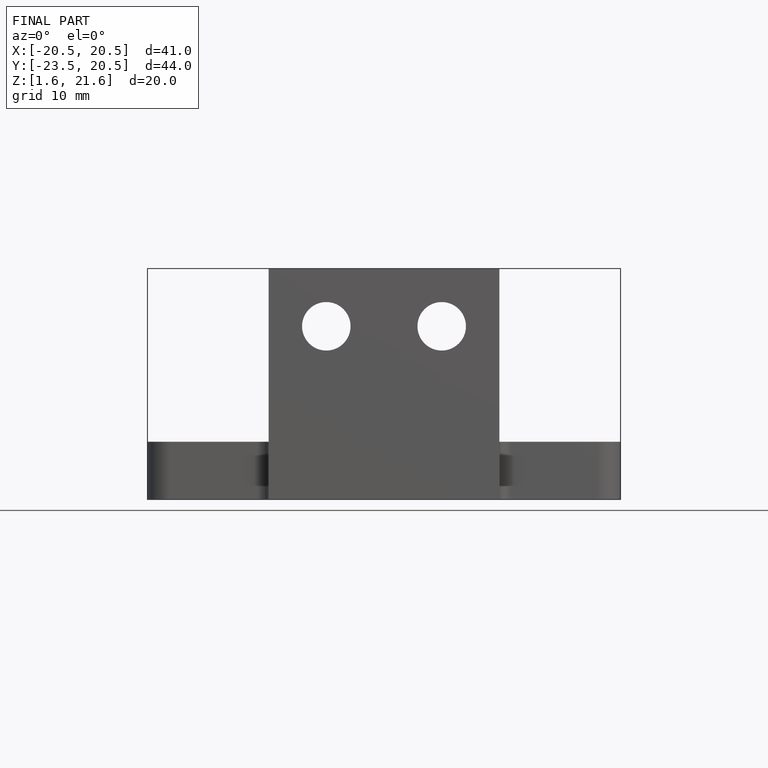
[diagram: finished part — front view with bounding-box wireframe]
